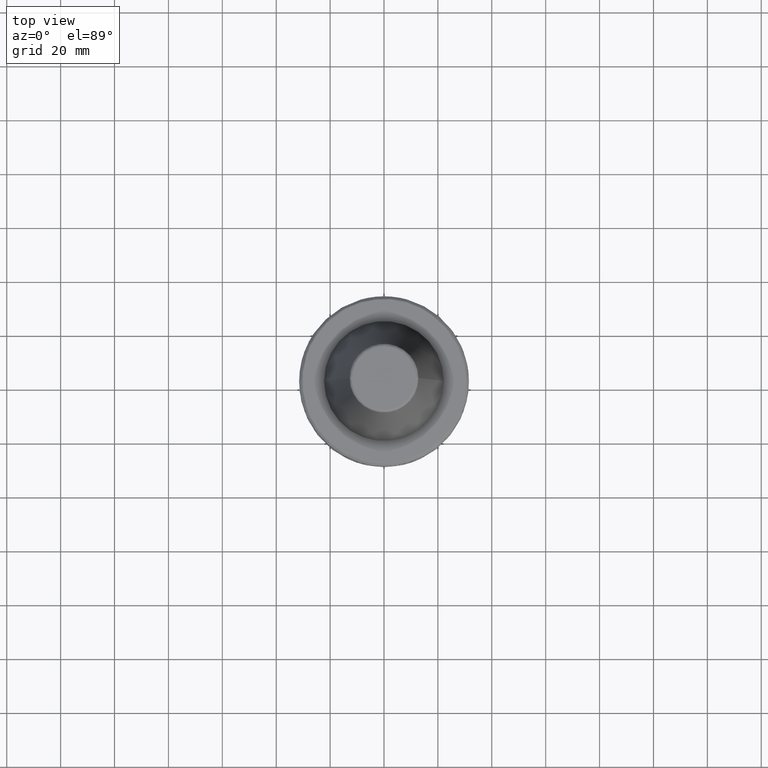
[diagram: clean part render]
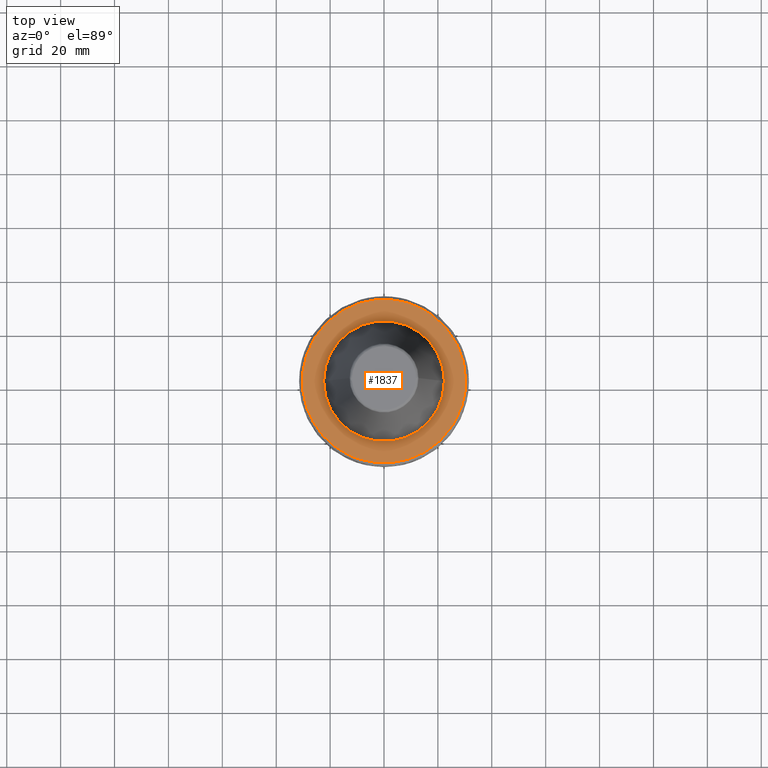
[diagram: same view with one face highlighted and labeled with its STEP entity id]
A machine part, top view. The second image highlights one B-rep face of the part: STEP entity #1837.
In plain terms, the highlighted planar face has unit normal (0, 0, 1).
Its self-contained STEP definition (entity closure, byte-faithful):
#7 = DIRECTION ( 'NONE',  ( 0.0000000000000000000, 0.0000000000000000000, 1.000000000000000000 ) ) ;
#10 = CARTESIAN_POINT ( 'NONE',  ( -30.69832634999999900, -29.39347233099999800, -2.000000000000000000 ) ) ;
#25 = CARTESIAN_POINT ( 'NONE',  ( 29.99094772052989600, 4.551500430335006600, -2.000000000000000400 ) ) ;
#29 = CARTESIAN_POINT ( 'NONE',  ( 28.89858134316554200, 9.221997355102129000, -1.999999999999999600 ) ) ;
#34 = CARTESIAN_POINT ( 'NONE',  ( 28.98842710708996900, 8.936419584275295600, -2.000000000000000000 ) ) ;
#40 = VERTEX_POINT ( 'NONE', #1597 ) ;
#70 = CARTESIAN_POINT ( 'NONE',  ( 29.63292899850427600, 6.572041760292683500, -2.000000000000000000 ) ) ;
#71 = CARTESIAN_POINT ( 'NONE',  ( 29.28491610906471400, 7.927833161445324400, -2.000000000000000000 ) ) ;
#83 = CARTESIAN_POINT ( 'NONE',  ( 29.09063575869059500, 8.601010503144777900, -2.000000000000000400 ) ) ;
#138 = CARTESIAN_POINT ( 'NONE',  ( 0.0000000000000000000, 0.0000000000000000000, -1.999999999889211500 ) ) ;
#200 = CARTESIAN_POINT ( 'NONE',  ( 28.63096951998275900, 10.05576094678015100, -2.000000000000000400 ) ) ;
#205 = CARTESIAN_POINT ( 'NONE',  ( 28.20668680423207100, 11.21377500253931800, -2.000000000000000000 ) ) ;
#217 = CARTESIAN_POINT ( 'NONE',  ( 27.63035417194024700, 12.53142947788729500, -2.000000000000000000 ) ) ;
#309 = CARTESIAN_POINT ( 'NONE',  ( 25.35861405874274900, 16.73046950034468900, -2.000000000000000400 ) ) ;
#323 = CARTESIAN_POINT ( 'NONE',  ( 27.32185382314866500, 13.18191623480184500, -2.000000000000000000 ) ) ;
#324 = CARTESIAN_POINT ( 'NONE',  ( 27.18528209524249200, 13.45890902760249700, -2.000000000000000400 ) ) ;
#352 = CARTESIAN_POINT ( 'NONE',  ( 27.09326598936951700, 13.64317372371914400, -1.999999999999999600 ) ) ;
#396 = CARTESIAN_POINT ( 'NONE',  ( 27.04742688783943200, 13.73383212789346600, -2.000000000000000000 ) ) ;
#441 = CARTESIAN_POINT ( 'NONE',  ( 26.23772648865523000, 15.31501136427651000, -2.000000000000000900 ) ) ;
#453 = CARTESIAN_POINT ( 'NONE',  ( 23.86336185732808700, 18.74596758938351800, -2.000000000000000400 ) ) ;
#467 = CARTESIAN_POINT ( 'NONE',  ( 23.07676778882729400, 19.71966275220767500, -2.000000000000000400 ) ) ;
#484 = AXIS2_PLACEMENT_3D ( 'NONE', #10, #7, #1816 ) ;
#502 = CARTESIAN_POINT ( 'NONE',  ( 22.09088076527113000, 20.79604614920251400, -2.000000000000000000 ) ) ;
#505 = VERTEX_POINT ( 'NONE', #3861 ) ;
#509 = DIRECTION ( 'NONE',  ( 1.000000000000000000, 0.0000000000000000000, 0.0000000000000000000 ) ) ;
#528 = EDGE_CURVE ( 'NONE', #3127, #2687, #882, .T. ) ;
#547 = CARTESIAN_POINT ( 'NONE',  ( 21.20970819160495000, 21.68708970332882700, -1.999999999999999600 ) ) ;
#551 = EDGE_CURVE ( 'NONE', #40, #505, #2294, .T. ) ;
#552 = CARTESIAN_POINT ( 'NONE',  ( 21.35866752159376600, 21.54041520530179800, -1.999999999999999600 ) ) ;
#574 = EDGE_CURVE ( 'NONE', #2687, #1173, #2540, .T. ) ;
#582 = CARTESIAN_POINT ( 'NONE',  ( 21.58088876758343100, 21.31933927445827600, -2.000000000000000400 ) ) ;
#600 = CIRCLE ( 'NONE', #1979, 22.40000002040103800 ) ;
#639 = CARTESIAN_POINT ( 'NONE',  ( -22.40000001036365500, 2.743208831359252800E-015, -1.999999999889212000 ) ) ;
#671 = PLANE ( 'NONE',  #484 ) ;
#687 = CARTESIAN_POINT ( 'NONE',  ( 21.13382203617698700, 21.76103739964288800, -1.999999999999999600 ) ) ;
#690 = CARTESIAN_POINT ( 'NONE',  ( 18.40812359473299500, 24.11670419200402900, -2.000000000000000400 ) ) ;
#695 = CARTESIAN_POINT ( 'NONE',  ( 19.54166597335441900, 23.22700986481958900, -2.000000000000000000 ) ) ;
#707 = CARTESIAN_POINT ( 'NONE',  ( 20.46520372418758200, 22.40600096083292700, -2.000000000000000400 ) ) ;
#727 = CARTESIAN_POINT ( 'NONE',  ( 17.53343108044114000, 24.75415957745899200, -2.000000000000000000 ) ) ;
#765 = CARTESIAN_POINT ( 'NONE',  ( 17.82733198809327400, 24.54451400706289000, -2.000000000000000400 ) ) ;
#862 = EDGE_CURVE ( 'NONE', #1844, #2983, #600, .T. ) ;
#882 = B_SPLINE_CURVE_WITH_KNOTS ( 'NONE', 3,
 ( #2573, #2569, #2577, #2587, #2589, #2594, #2604, #2610, #2617, #2619, #2621, #2624, #2630, #2632, #2636, #2635, #2643, #2651, #2653, #2658, #2669, #2671, #2674, #2675, #2676, #2686, #2700, #2712, #2716, #2729, #2738, #2751, #2761, #2767, #2773, #2776, #2777, #2787, #2792, #2793, #2802, #2806, #2807, #2813, #2818, #2826, #2833, #2835, #2848, #2854, #2858, #2863 ),
 .UNSPECIFIED., .F., .F.,
 ( 4, 1, 1, 1, 1, 2, 2, 1, 1, 1, 1, 2, 2, 1, 1, 1, 2, 2, 2, 1, 1, 1, 2, 2, 1, 1, 1, 1, 2, 2, 1, 1, 1, 1, 2, 2, 4 ),
 ( 0.0000000000000000000, 0.06249999999999890400, 0.09374999999999836200, 0.1093749999999980700, 0.1171874999999979900, 0.1210937499999979500, 0.1249999999999978900, 0.1874999999999955900, 0.2187499999999944500, 0.2343749999999939500, 0.2421874999999937000, 0.2460937499999934500, 0.2499999999999932300, 0.3124999999999925100, 0.3437499999999921700, 0.3593749999999920100, 0.3671874999999919500, 0.3749999999999919000, 0.4999999999999917800, 0.5624999999999916700, 0.5937499999999915600, 0.6093749999999915600, 0.6171874999999914500, 0.6249999999999914500, 0.6874999999999910100, 0.7187499999999907900, 0.7343749999999907900, 0.7421874999999907900, 0.7460937499999907900, 0.7499999999999907900, 0.8124999999999928900, 0.8437499999999938900, 0.8593749999999943400, 0.8671874999999946700, 0.8710937499999947800, 0.8749999999999950000, 1.000000000000000000 ),
 .UNSPECIFIED. ) ;
#918 = CARTESIAN_POINT ( 'NONE',  ( 17.40672245480475400, 24.84309496395732000, -2.000000000000000000 ) ) ;
#926 = CARTESIAN_POINT ( 'NONE',  ( 17.32208312798371700, 24.90218239604509900, -1.999999999999999600 ) ) ;
#1169 = AXIS2_PLACEMENT_3D ( 'NONE', #1903, #1716, #1512 ) ;
#1173 = VERTEX_POINT ( 'NONE', #2905 ) ;
#1236 = CARTESIAN_POINT ( 'NONE',  ( 30.33431456900200700, 0.0000000000000000000, -1.999999999989127100 ) ) ;
#1268 = FACE_BOUND ( 'NONE', #2941, .T. ) ;
#1322 = CARTESIAN_POINT ( 'NONE',  ( 17.27857023573382000, 24.93239110040556400, -2.000000000000000000 ) ) ;
#1325 = CARTESIAN_POINT ( 'NONE',  ( 10.23356629341608200, 28.59799786285369900, -2.000000000000000000 ) ) ;
#1335 = CARTESIAN_POINT ( 'NONE',  ( 13.16285478295100100, 27.32969761418131000, -2.000000000000000900 ) ) ;
#1351 = CARTESIAN_POINT ( 'NONE',  ( 15.55800972109301000, 26.06257617587718700, -2.000000000000000000 ) ) ;
#1365 = CARTESIAN_POINT ( 'NONE',  ( 13.70414636490066100, 27.06361647276048600, -2.000000000000000000 ) ) ;
#1374 = CARTESIAN_POINT ( 'NONE',  ( 14.32913341037129100, 26.74200232872445000, -2.000000000000000000 ) ) ;
#1376 = CARTESIAN_POINT ( 'NONE',  ( 13.38901561963789900, 27.21989881168162400, -2.000000000000000400 ) ) ;
#1378 = CARTESIAN_POINT ( 'NONE',  ( 13.11580958610841000, 27.35230287926909700, -2.000000000000000400 ) ) ;
#1421 = CARTESIAN_POINT ( 'NONE',  ( 13.25339446684082000, 27.28590737126991100, -2.000000000000000000 ) ) ;
#1433 = CARTESIAN_POINT ( 'NONE',  ( 11.67427520330624100, 28.04074170514783000, -2.000000000000000000 ) ) ;
#1465 = CARTESIAN_POINT ( 'NONE',  ( 8.750000000010878400, 29.04493312732836700, -1.999999999989121600 ) ) ;
#1512 = DIRECTION ( 'NONE',  ( 1.000000000000000000, 0.0000000000000000000, 0.0000000000000000000 ) ) ;
#1597 = CARTESIAN_POINT ( 'NONE',  ( -8.750000000010878400, 29.04493312732836700, -1.999999999989121600 ) ) ;
#1612 = CARTESIAN_POINT ( 'NONE',  ( 16.57516464990666400, 25.41815741953639200, -1.999999999999999600 ) ) ;
#1716 = DIRECTION ( 'NONE',  ( -0.0000000000000000000, -0.0000000000000000000, 1.000000000000000000 ) ) ;
#1774 = EDGE_LOOP ( 'NONE', ( #2803, #3079, #3117, #3168, #3188 ) ) ;
#1816 = DIRECTION ( 'NONE',  ( 1.000000000000000000, 0.0000000000000000000, 0.0000000000000000000 ) ) ;
#1837 = ADVANCED_FACE ( 'NONE', ( #3151, #1268 ), #671, .T. ) ;
#1844 = VERTEX_POINT ( 'NONE', #1973 ) ;
#1903 = CARTESIAN_POINT ( 'NONE',  ( 0.0000000000000000000, 0.0000000000000000000, -1.999999999989121600 ) ) ;
#1973 = CARTESIAN_POINT ( 'NONE',  ( 22.40000001036365500, 0.0000000000000000000, -1.999999999889212000 ) ) ;
#1979 = AXIS2_PLACEMENT_3D ( 'NONE', #3459, #3442, #3441 ) ;
#2294 = B_SPLINE_CURVE_WITH_KNOTS ( 'NONE', 3,
 ( #2944, #2937, #2966, #2968, #2973, #2982, #2987, #3004, #3008, #3012, #3019, #3021, #3031, #3051, #3045, #3078, #3080, #3092, #3103, #3110, #3118, #3123, #3128, #3136, #3147, #3153, #3160, #3167, #3171, #3174, #3180, #3197, #3189, #3199, #3204, #3209, #3215, #3216, #3223, #3229, #3232, #3233, #3234, #3238, #3244, #3246, #3250, #3260, #3258, #3261, #3263, #3269, #3271, #3272, #3280, #3283, #3284, #3288, #3296, #3298, #3302, #3311, #3314, #3316, #3315, #3324, #3333, #3338, #3346, #3348, #3354, #3358, #3359, #3367, #3372, #3381, #3382, #3390, #3393, #3845, #2542, #3504, #3413, #3424, #3417, #3428, #3440, #3447, #3452, #3466, #3467, #3472, #3475, #3488, #3490, #3512, #3517, #3519, #3521, #3529, #3536, #3538, #3545, #3552, #3553, #3562, #3564, #3570, #3575, #3584, #3591, #3593, #3595, #3601, #3603, #3605, #3606, #3615, #3616, #3619, #3627, #3633, #3643, #3682, #3687, #3701, #3706, #3712, #3728, #3731, #3739, #3740, #3744, #3746, #3750, #3753, #3762, #3768, #3773, #3780, #3787, #3788, #3790, #3794, #3804, #3809, #3807, #3826, #3820 ),
 .UNSPECIFIED., .F., .F.,
 ( 4, 1, 1, 1, 1, 1, 2, 2, 1, 1, 1, 1, 1, 2, 2, 1, 1, 1, 1, 1, 2, 2, 1, 1, 1, 1, 1, 2, 2, 1, 1, 1, 1, 2, 2, 1, 1, 2, 2, 1, 1, 2, 2, 1, 1, 2, 2, 1, 2, 2, 2, 2, 2, 1, 2, 2, 1, 2, 2, 1, 1, 2, 2, 1, 1, 2, 2, 1, 1, 1, 2, 2, 1, 1, 1, 2, 2, 1, 1, 1, 1, 1, 2, 2, 1, 1, 1, 1, 1, 2, 2, 1, 1, 1, 1, 1, 2, 2, 1, 1, 1, 1, 1, 2, 2, 4 ),
 ( 0.0000000000000000000, 0.03124999999999630900, 0.04687499999999449100, 0.05468749999999358200, 0.05859374999999312400, 0.06054687499999289500, 0.06152343749999278400, 0.06249999999999265900, 0.09374999999999053500, 0.1093749999999894800, 0.1171874999999889400, 0.1210937499999886300, 0.1230468749999885400, 0.1240234374999885400, 0.1249999999999885600, 0.1562499999999875400, 0.1718749999999870100, 0.1796874999999868200, 0.1835937499999866800, 0.1855468749999865900, 0.1865234374999865700, 0.1874999999999865400, 0.2187499999999858200, 0.2343749999999854800, 0.2421874999999852300, 0.2460937499999851200, 0.2480468749999851000, 0.2490234374999851000, 0.2499999999999850700, 0.2812499999999854000, 0.2968749999999856200, 0.3046874999999857300, 0.3085937499999857900, 0.3105468749999857900, 0.3124999999999857900, 0.3281249999999857900, 0.3359374999999857300, 0.3398437499999857300, 0.3437499999999856800, 0.3593749999999855100, 0.3671874999999854600, 0.3710937499999853500, 0.3749999999999852900, 0.3906249999999849600, 0.3984374999999847900, 0.4023437499999847300, 0.4062499999999846200, 0.4218749999999843500, 0.4296874999999842300, 0.4374999999999840700, 0.4531249999999837400, 0.4687499999999833500, 0.4999999999999826800, 0.5156249999999823500, 0.5234374999999822400, 0.5312499999999821300, 0.5468749999999817900, 0.5546874999999816800, 0.5624999999999814600, 0.5781249999999812400, 0.5859374999999811300, 0.5898437499999810200, 0.5937499999999810200, 0.6093749999999809000, 0.6171874999999806800, 0.6210937499999806800, 0.6249999999999806800, 0.6406249999999804600, 0.6484374999999804600, 0.6523437499999803500, 0.6542968749999802400, 0.6562499999999801300, 0.6718749999999794600, 0.6796874999999792400, 0.6835937499999791300, 0.6855468749999791300, 0.6874999999999790200, 0.7187499999999776800, 0.7343749999999771300, 0.7421874999999766900, 0.7460937499999765700, 0.7480468749999764600, 0.7490234374999764600, 0.7499999999999764600, 0.7812499999999787900, 0.7968749999999797900, 0.8046874999999804600, 0.8085937499999807900, 0.8105468749999809000, 0.8115234374999810200, 0.8124999999999810200, 0.8437499999999846800, 0.8593749999999864600, 0.8671874999999873400, 0.8710937499999876800, 0.8730468749999879000, 0.8740234374999880100, 0.8749999999999881200, 0.9062499999999904500, 0.9218749999999915600, 0.9296874999999922300, 0.9335937499999925600, 0.9355468749999927800, 0.9365234374999928900, 0.9374999999999928900, 1.000000000000000000 ),
 .UNSPECIFIED. ) ;
#2457 = AXIS2_PLACEMENT_3D ( 'NONE', #3784, #3890, #3799 ) ;
#2540 = B_SPLINE_CURVE_WITH_KNOTS ( 'NONE', 3,
 ( #3875, #3874, #3883, #3884, #3896, #3898, #3900, #3909, #25, #3911, #70, #71, #83, #34, #3254, #2685, #29, #200, #205, #217, #323, #324, #352, #396, #441, #309, #453, #467, #502, #582, #552, #547, #687, #707, #695, #690, #765, #727, #918, #926, #1322, #1612, #1351, #1374, #1365, #1376, #1421, #1335, #1378, #1433, #1325, #1465 ),
 .UNSPECIFIED., .F., .F.,
 ( 4, 1, 1, 1, 1, 2, 2, 1, 1, 1, 1, 2, 2, 1, 1, 1, 2, 2, 2, 1, 1, 1, 2, 2, 1, 1, 1, 1, 2, 2, 1, 1, 1, 1, 2, 2, 4 ),
 ( 0.0000000000000000000, 0.06249999999999821000, 0.09374999999999729400, 0.1093749999999968400, 0.1171874999999966000, 0.1210937499999965200, 0.1249999999999964200, 0.1874999999999948700, 0.2187499999999941200, 0.2343749999999938100, 0.2421874999999937500, 0.2460937499999937500, 0.2499999999999937300, 0.3124999999999942300, 0.3437499999999944500, 0.3593749999999945600, 0.3671874999999946200, 0.3749999999999946200, 0.4999999999999947800, 0.5624999999999950000, 0.5937499999999951200, 0.6093749999999952300, 0.6171874999999953400, 0.6249999999999954500, 0.6874999999999947800, 0.7187499999999944500, 0.7343749999999943400, 0.7421874999999944500, 0.7460937499999945600, 0.7499999999999945600, 0.8124999999999946700, 0.8437499999999947800, 0.8593749999999950000, 0.8671874999999951200, 0.8710937499999952300, 0.8749999999999953400, 1.000000000000000000 ),
 .UNSPECIFIED. ) ;
#2542 = CARTESIAN_POINT ( 'NONE',  ( -30.07935801154815900, -3.973196832563009800, -2.000000000000000400 ) ) ;
#2569 = CARTESIAN_POINT ( 'NONE',  ( 9.491616504613453700, -28.82151570054404400, -2.000000000000000400 ) ) ;
#2573 = CARTESIAN_POINT ( 'NONE',  ( 8.750000000010878400, -29.04493312732836700, -1.999999999989121600 ) ) ;
#2577 = CARTESIAN_POINT ( 'NONE',  ( 10.58809472701502100, -28.44498156556093700, -2.000000000000000400 ) ) ;
#2587 = CARTESIAN_POINT ( 'NONE',  ( 11.83941287484579000, -27.93322777064513600, -2.000000000000000900 ) ) ;
#2589 = CARTESIAN_POINT ( 'NONE',  ( 12.45809533751841900, -27.65923488049502100, -2.000000000000000400 ) ) ;
#2594 = CARTESIAN_POINT ( 'NONE',  ( 12.76569241604403100, -27.51770943724689300, -2.000000000000000400 ) ) ;
#2604 = CARTESIAN_POINT ( 'NONE',  ( 12.89714598838129000, -27.45608517624634000, -1.999999999999999600 ) ) ;
#2610 = CARTESIAN_POINT ( 'NONE',  ( 12.98469864837705500, -27.41478666899963200, -2.000000000000000900 ) ) ;
#2617 = CARTESIAN_POINT ( 'NONE',  ( 13.02675039796537100, -27.39483329308456300, -2.000000000000000400 ) ) ;
#2619 = CARTESIAN_POINT ( 'NONE',  ( 13.79814797505037800, -27.02646656266523800, -2.000000000000000900 ) ) ;
#2621 = CARTESIAN_POINT ( 'NONE',  ( 14.86329725063449600, -26.46491810423831100, -2.000000000000000400 ) ) ;
#2624 = CARTESIAN_POINT ( 'NONE',  ( 16.06417685907421600, -25.73715094427415900, -2.000000000000000000 ) ) ;
#2630 = CARTESIAN_POINT ( 'NONE',  ( 16.65416802669198800, -25.35511054134225300, -2.000000000000000000 ) ) ;
#2632 = CARTESIAN_POINT ( 'NONE',  ( 16.94655145135034500, -25.15955113413882000, -2.000000000000000000 ) ) ;
#2635 = CARTESIAN_POINT ( 'NONE',  ( 17.15433945216445400, -25.01802854571883800, -2.000000000000000000 ) ) ;
#2636 = CARTESIAN_POINT ( 'NONE',  ( 17.07129888495739000, -25.07476727267933100, -2.000000000000000400 ) ) ;
#2643 = CARTESIAN_POINT ( 'NONE',  ( 17.19472438798234400, -24.99029216120723300, -2.000000000000000400 ) ) ;
#2651 = CARTESIAN_POINT ( 'NONE',  ( 17.91669821405805500, -24.49174044689493700, -2.000000000000000000 ) ) ;
#2653 = CARTESIAN_POINT ( 'NONE',  ( 18.90411900667743700, -23.74878839320646800, -2.000000000000000400 ) ) ;
#2658 = CARTESIAN_POINT ( 'NONE',  ( 20.00039627759097300, -22.81356090334749000, -2.000000000000000000 ) ) ;
#2669 = CARTESIAN_POINT ( 'NONE',  ( 20.53460649959547600, -22.32883463494571400, -2.000000000000000900 ) ) ;
#2671 = CARTESIAN_POINT ( 'NONE',  ( 20.76056907757191200, -22.11742783631518000, -2.000000000000000000 ) ) ;
#2674 = CARTESIAN_POINT ( 'NONE',  ( 20.91054753843942700, -21.97567508849138200, -2.000000000000000000 ) ) ;
#2675 = CARTESIAN_POINT ( 'NONE',  ( 20.98426913039160300, -21.90529410334559300, -1.999999999999999600 ) ) ;
#2676 = CARTESIAN_POINT ( 'NONE',  ( 22.26372282847489000, -20.67119464503168700, -2.000000000000000400 ) ) ;
#2685 = CARTESIAN_POINT ( 'NONE',  ( 28.91336940120782000, 9.175520046386925100, -1.999999999999999100 ) ) ;
#2686 = CARTESIAN_POINT ( 'NONE',  ( 23.36555037923360300, -19.41688641025338700, -2.000000000000000000 ) ) ;
#2687 = VERTEX_POINT ( 'NONE', #1236 ) ;
#2700 = CARTESIAN_POINT ( 'NONE',  ( 24.85989369709860200, -17.40275913444099500, -2.000000000000000400 ) ) ;
#2712 = CARTESIAN_POINT ( 'NONE',  ( 25.56323180091421000, -16.36831578775927600, -2.000000000000000000 ) ) ;
#2716 = CARTESIAN_POINT ( 'NONE',  ( 26.30708420057783700, -15.11355072627343400, -2.000000000000000000 ) ) ;
#2729 = CARTESIAN_POINT ( 'NONE',  ( 26.65983322004600000, -14.47418957294122200, -2.000000000000000000 ) ) ;
#2738 = CARTESIAN_POINT ( 'NONE',  ( 26.80690197545443700, -14.19761080238686000, -2.000000000000000400 ) ) ;
#2751 = CARTESIAN_POINT ( 'NONE',  ( 26.90403461332845600, -14.01265454475112000, -2.000000000000000000 ) ) ;
#2761 = CARTESIAN_POINT ( 'NONE',  ( 26.95283833222391600, -13.91853609182576600, -2.000000000000000000 ) ) ;
#2765 = AXIS2_PLACEMENT_3D ( 'NONE', #138, #3877, #509 ) ;
#2767 = CARTESIAN_POINT ( 'NONE',  ( 27.37547041565432000, -13.09329530633923100, -2.000000000000000000 ) ) ;
#2773 = CARTESIAN_POINT ( 'NONE',  ( 27.89260539026890800, -11.97365973281248200, -2.000000000000000000 ) ) ;
#2776 = CARTESIAN_POINT ( 'NONE',  ( 28.41477420489049500, -10.63361780949472100, -1.999999999999999600 ) ) ;
#2777 = CARTESIAN_POINT ( 'NONE',  ( 28.65556978159408500, -9.955146742618378400, -2.000000000000000000 ) ) ;
#2787 = CARTESIAN_POINT ( 'NONE',  ( 28.77089536229408400, -9.613798682875829700, -1.999999999999999600 ) ) ;
#2792 = CARTESIAN_POINT ( 'NONE',  ( 28.81923370952584000, -9.467053973063803700, -2.000000000000000000 ) ) ;
#2793 = CARTESIAN_POINT ( 'NONE',  ( 28.85121774064930400, -9.369123570031767700, -2.000000000000000000 ) ) ;
#2802 = CARTESIAN_POINT ( 'NONE',  ( 28.86751918071708200, -9.318767940977522800, -2.000000000000000000 ) ) ;
#2803 = ORIENTED_EDGE ( 'NONE', *, *, #551, .T. ) ;
#2806 = CARTESIAN_POINT ( 'NONE',  ( 29.12796411937252100, -8.507431572842651900, -2.000000000000000000 ) ) ;
#2807 = CARTESIAN_POINT ( 'NONE',  ( 29.44937089772534800, -7.350973885567253100, -2.000000000000000000 ) ) ;
#2813 = CARTESIAN_POINT ( 'NONE',  ( 29.74335513320376700, -5.982450383660991000, -1.999999999999999600 ) ) ;
#2818 = CARTESIAN_POINT ( 'NONE',  ( 29.87009966612636400, -5.293357916019942000, -2.000000000000000400 ) ) ;
#2826 = CARTESIAN_POINT ( 'NONE',  ( 29.92841003638347900, -4.947604003027440600, -2.000000000000000400 ) ) ;
#2833 = CARTESIAN_POINT ( 'NONE',  ( 29.95231550302136400, -4.799164966208091500, -2.000000000000000000 ) ) ;
#2835 = CARTESIAN_POINT ( 'NONE',  ( 29.96801143810355200, -4.700148099796521700, -2.000000000000000400 ) ) ;
#2848 = CARTESIAN_POINT ( 'NONE',  ( 29.97603395988365100, -4.648688230146606600, -1.999999999999999600 ) ) ;
#2854 = CARTESIAN_POINT ( 'NONE',  ( 30.21732498637145900, -3.076460664678158700, -1.999999999999999600 ) ) ;
#2858 = CARTESIAN_POINT ( 'NONE',  ( 30.33431457497160000, -1.542779007815861000, -2.000000000000000400 ) ) ;
#2863 = CARTESIAN_POINT ( 'NONE',  ( 30.33431456900200700, 0.0000000000000000000, -1.999999999989127100 ) ) ;
#2905 = CARTESIAN_POINT ( 'NONE',  ( 8.750000000010878400, 29.04493312732836700, -1.999999999989121600 ) ) ;
#2937 = CARTESIAN_POINT ( 'NONE',  ( -9.356263315191235100, 28.86229184570564900, -2.000000000000000000 ) ) ;
#2941 = EDGE_LOOP ( 'NONE', ( #3224, #3478 ) ) ;
#2944 = CARTESIAN_POINT ( 'NONE',  ( -8.750000000010878400, 29.04493312732836700, -1.999999999989121600 ) ) ;
#2966 = CARTESIAN_POINT ( 'NONE',  ( -10.25539830336300000, 28.56047632669930900, -2.000000000000000400 ) ) ;
#2968 = CARTESIAN_POINT ( 'NONE',  ( -11.28643410343893500, 28.15961445780850200, -2.000000000000000400 ) ) ;
#2973 = CARTESIAN_POINT ( 'NONE',  ( -11.79746324861245000, 27.94699758251726300, -2.000000000000000400 ) ) ;
#2982 = CARTESIAN_POINT ( 'NONE',  ( -12.05185563248309500, 27.83764265966016900, -2.000000000000000000 ) ) ;
#2983 = VERTEX_POINT ( 'NONE', #639 ) ;
#2987 = CARTESIAN_POINT ( 'NONE',  ( -12.17877127723939700, 27.78220357692877600, -2.000000000000000900 ) ) ;
#3004 = CARTESIAN_POINT ( 'NONE',  ( -12.23310357916801500, 27.75828076547898200, -1.999999999999999600 ) ) ;
#3008 = CARTESIAN_POINT ( 'NONE',  ( -12.26931175439761800, 27.74229595683137400, -2.000000000000000000 ) ) ;
#3012 = CARTESIAN_POINT ( 'NONE',  ( -12.28581283852638100, 27.73499386776726500, -2.000000000000000000 ) ) ;
#3019 = CARTESIAN_POINT ( 'NONE',  ( -12.93548555507501500, 27.44666887129768200, -2.000000000000000400 ) ) ;
#3021 = CARTESIAN_POINT ( 'NONE',  ( -13.86415961935535200, 26.99612151116273800, -2.000000000000000000 ) ) ;
#3031 = CARTESIAN_POINT ( 'NONE',  ( -14.91907993744312600, 26.41594321693412400, -1.999999999999999600 ) ) ;
#3045 = CARTESIAN_POINT ( 'NONE',  ( -15.69778709486261900, 25.95694837427321400, -2.000000000000000000 ) ) ;
#3051 = CARTESIAN_POINT ( 'NONE',  ( -15.43940690726052300, 26.11221914296869400, -2.000000000000000000 ) ) ;
#3061 = CIRCLE ( 'NONE', #2765, 22.40000002040103800 ) ;
#3078 = CARTESIAN_POINT ( 'NONE',  ( -15.82653136433699500, 25.87846080699726400, -2.000000000000000400 ) ) ;
#3079 = ORIENTED_EDGE ( 'NONE', *, *, #3625, .T. ) ;
#3080 = CARTESIAN_POINT ( 'NONE',  ( -15.88161194604173500, 25.84464066753725600, -2.000000000000000000 ) ) ;
#3085 = CIRCLE ( 'NONE', #2457, 30.33431456900200700 ) ;
#3092 = CARTESIAN_POINT ( 'NONE',  ( -15.91831110411505700, 25.82205332775781100, -2.000000000000000000 ) ) ;
#3103 = CARTESIAN_POINT ( 'NONE',  ( -15.93515230959061500, 25.81166558167947400, -2.000000000000000400 ) ) ;
#3107 = CIRCLE ( 'NONE', #1169, 30.33431456900200700 ) ;
#3110 = CARTESIAN_POINT ( 'NONE',  ( -16.58941387368955100, 25.40707027264038900, -2.000000000000000400 ) ) ;
#3117 = ORIENTED_EDGE ( 'NONE', *, *, #528, .T. ) ;
#3118 = CARTESIAN_POINT ( 'NONE',  ( -17.51699707711204800, 24.78515420528919600, -1.999999999999999600 ) ) ;
#3123 = CARTESIAN_POINT ( 'NONE',  ( -18.55705501484249700, 24.00111131064468100, -2.000000000000000400 ) ) ;
#3127 = VERTEX_POINT ( 'NONE', #3409 ) ;
#3128 = CARTESIAN_POINT ( 'NONE',  ( -19.06655336714210200, 23.59447132597204800, -1.999999999999999600 ) ) ;
#3136 = CARTESIAN_POINT ( 'NONE',  ( -19.31866988915049900, 23.38749669929814300, -2.000000000000000000 ) ) ;
#3147 = CARTESIAN_POINT ( 'NONE',  ( -19.44406998661935000, 23.28309572737680400, -2.000000000000000000 ) ) ;
#3151 = FACE_OUTER_BOUND ( 'NONE', #1774, .T. ) ;
#3153 = CARTESIAN_POINT ( 'NONE',  ( -19.49767185049128000, 23.23815666971384200, -1.999999999999999600 ) ) ;
#3160 = CARTESIAN_POINT ( 'NONE',  ( -19.53337508528516500, 23.20815379038690600, -1.999999999999999100 ) ) ;
#3167 = CARTESIAN_POINT ( 'NONE',  ( -19.54990844443944900, 23.19423031968027600, -1.999999999999999600 ) ) ;
#3168 = ORIENTED_EDGE ( 'NONE', *, *, #574, .T. ) ;
#3171 = CARTESIAN_POINT ( 'NONE',  ( -20.18096295507029600, 22.66145621140403000, -2.000000000000000000 ) ) ;
#3174 = CARTESIAN_POINT ( 'NONE',  ( -21.06558052801685200, 21.85269675747641900, -2.000000000000000000 ) ) ;
#3180 = CARTESIAN_POINT ( 'NONE',  ( -22.03939454326272300, 20.84996729246651600, -2.000000000000000000 ) ) ;
#3188 = ORIENTED_EDGE ( 'NONE', *, *, #3672, .T. ) ;
#3189 = CARTESIAN_POINT ( 'NONE',  ( -22.74427513350907000, 20.07203035737612900, -2.000000000000000000 ) ) ;
#3197 = CARTESIAN_POINT ( 'NONE',  ( -22.51174159592105500, 20.33380836777129400, -2.000000000000000000 ) ) ;
#3199 = CARTESIAN_POINT ( 'NONE',  ( -22.85963190511778700, 19.94021671516665300, -2.000000000000000000 ) ) ;
#3204 = CARTESIAN_POINT ( 'NONE',  ( -22.90887552212467400, 19.88352701771719200, -1.999999999999999600 ) ) ;
#3209 = CARTESIAN_POINT ( 'NONE',  ( -22.94166126692996600, 19.84568985575031200, -1.999999999999999600 ) ) ;
#3215 = CARTESIAN_POINT ( 'NONE',  ( -22.95701710977427000, 19.82792690337887700, -2.000000000000000000 ) ) ;
#3216 = CARTESIAN_POINT ( 'NONE',  ( -23.53005888112157600, 19.16329848520100800, -2.000000000000000000 ) ) ;
#3223 = CARTESIAN_POINT ( 'NONE',  ( -24.32030747742505000, 18.16502189206043000, -2.000000000000000400 ) ) ;
#3224 = ORIENTED_EDGE ( 'NONE', *, *, #862, .T. ) ;
#3229 = CARTESIAN_POINT ( 'NONE',  ( -25.16654743503216800, 16.94516325682293400, -2.000000000000000000 ) ) ;
#3232 = CARTESIAN_POINT ( 'NONE',  ( -25.57073822931568000, 16.32143328672748000, -2.000000000000000000 ) ) ;
#3233 = CARTESIAN_POINT ( 'NONE',  ( -25.76810133032741500, 16.00611813856058100, -2.000000000000000400 ) ) ;
#3234 = CARTESIAN_POINT ( 'NONE',  ( -25.85167145301886600, 15.87024375439208700, -1.999999999999999100 ) ) ;
#3238 = CARTESIAN_POINT ( 'NONE',  ( -25.90715952071174800, 15.77949653813122500, -2.000000000000000000 ) ) ;
#3244 = CARTESIAN_POINT ( 'NONE',  ( -25.93380419485333000, 15.73567355049108600, -2.000000000000000000 ) ) ;
#3246 = CARTESIAN_POINT ( 'NONE',  ( -26.19035254644559900, 15.31113753089935200, -2.000000000000000000 ) ) ;
#3250 = CARTESIAN_POINT ( 'NONE',  ( -26.51982622991077700, 14.73806452999459400, -2.000000000000000400 ) ) ;
#3254 = CARTESIAN_POINT ( 'NONE',  ( 28.94353729717251500, 9.079913564105682500, -2.000000000000000400 ) ) ;
#3258 = CARTESIAN_POINT ( 'NONE',  ( -27.03275052787816100, 13.76274605932045100, -1.999999999999999600 ) ) ;
#3260 = CARTESIAN_POINT ( 'NONE',  ( -26.88217831963563100, 14.05718565640308900, -2.000000000000000400 ) ) ;
#3261 = CARTESIAN_POINT ( 'NONE',  ( -27.13208276792948600, 13.56586758003349200, -2.000000000000000900 ) ) ;
#3263 = CARTESIAN_POINT ( 'NONE',  ( -27.18025756466078100, 13.46910465774443800, -2.000000000000000400 ) ) ;
#3269 = CARTESIAN_POINT ( 'NONE',  ( -27.42817554043308800, 12.96413626351587700, -2.000000000000000000 ) ) ;
#3271 = CARTESIAN_POINT ( 'NONE',  ( -27.71196662871978600, 12.35204075590222500, -2.000000000000000000 ) ) ;
#3272 = CARTESIAN_POINT ( 'NONE',  ( -28.01906288710077000, 11.62719581990905100, -2.000000000000000400 ) ) ;
#3280 = CARTESIAN_POINT ( 'NONE',  ( -28.14553413827400500, 11.31424795224541700, -1.999999999999999600 ) ) ;
#3283 = CARTESIAN_POINT ( 'NONE',  ( -28.22870576550284100, 11.10510492092472400, -2.000000000000001300 ) ) ;
#3284 = CARTESIAN_POINT ( 'NONE',  ( -28.26907202198373900, 11.00196227167904300, -2.000000000000000400 ) ) ;
#3288 = CARTESIAN_POINT ( 'NONE',  ( -28.47452982407325800, 10.46812696471688000, -2.000000000000000000 ) ) ;
#3296 = CARTESIAN_POINT ( 'NONE',  ( -28.70639203148637700, 9.822481284329160900, -2.000000000000000000 ) ) ;
#3298 = CARTESIAN_POINT ( 'NONE',  ( -28.95119541872002600, 9.060402194485513800, -2.000000000000000400 ) ) ;
#3302 = CARTESIAN_POINT ( 'NONE',  ( -29.05060347294549300, 8.731905628254393600, -2.000000000000000400 ) ) ;
#3311 = CARTESIAN_POINT ( 'NONE',  ( -29.11565157950460400, 8.512487641430878300, -2.000000000000000000 ) ) ;
#3314 = CARTESIAN_POINT ( 'NONE',  ( -29.14718843085566400, 8.403888779283018800, -1.999999999999999600 ) ) ;
#3315 = CARTESIAN_POINT ( 'NONE',  ( -29.48014449815510200, 7.174164015081901300, -2.000000000000000000 ) ) ;
#3316 = CARTESIAN_POINT ( 'NONE',  ( -29.30556523496210600, 7.846641085884025200, -2.000000000000000000 ) ) ;
#3324 = CARTESIAN_POINT ( 'NONE',  ( -29.63151440874596800, 6.496017186194847200, -2.000000000000000400 ) ) ;
#3333 = CARTESIAN_POINT ( 'NONE',  ( -29.72727004856162100, 6.042659354029025200, -2.000000000000000400 ) ) ;
#3338 = CARTESIAN_POINT ( 'NONE',  ( -29.77223559838577000, 5.817129645436257800, -2.000000000000000000 ) ) ;
#3346 = CARTESIAN_POINT ( 'NONE',  ( -29.90139651575819400, 5.127975516632166600, -2.000000000000000400 ) ) ;
#3348 = CARTESIAN_POINT ( 'NONE',  ( -29.97681941064787700, 4.666952077928250700, -2.000000000000000000 ) ) ;
#3354 = CARTESIAN_POINT ( 'NONE',  ( -30.10629643371007800, 3.741730494851347000, -2.000000000000000000 ) ) ;
#3358 = CARTESIAN_POINT ( 'NONE',  ( -30.16019740235522000, 3.279177264159904000, -2.000000000000000400 ) ) ;
#3359 = CARTESIAN_POINT ( 'NONE',  ( -30.29076611537907800, 1.876886031492797500, -2.000000000000000400 ) ) ;
#3367 = CARTESIAN_POINT ( 'NONE',  ( -30.33429755141198900, 0.9389045381770035900, -1.999999999999999600 ) ) ;
#3372 = CARTESIAN_POINT ( 'NONE',  ( -30.33432308671818900, -0.4694522690884966900, -2.000000000000000000 ) ) ;
#3381 = CARTESIAN_POINT ( 'NONE',  ( -30.31800518701311400, -1.173009827563726800, -2.000000000000000400 ) ) ;
#3382 = CARTESIAN_POINT ( 'NONE',  ( -30.27719128627079900, -1.875636118302685500, -2.000000000000000000 ) ) ;
#3390 = CARTESIAN_POINT ( 'NONE',  ( -30.24453846332319200, -2.343846697076152000, -2.000000000000000000 ) ) ;
#3393 = CARTESIAN_POINT ( 'NONE',  ( -30.22537985283936700, -2.579034885945620900, -2.000000000000000400 ) ) ;
#3409 = CARTESIAN_POINT ( 'NONE',  ( 8.750000000010878400, -29.04493312732836700, -1.999999999989121600 ) ) ;
#3413 = CARTESIAN_POINT ( 'NONE',  ( -29.89876974088069500, -5.127262311186114200, -1.999999999999999600 ) ) ;
#3417 = CARTESIAN_POINT ( 'NONE',  ( -29.72993185422710400, -6.042936981947995900, -2.000000000000000400 ) ) ;
#3424 = CARTESIAN_POINT ( 'NONE',  ( -29.85796792915132200, -5.359648912778335500, -2.000000000000000000 ) ) ;
#3428 = CARTESIAN_POINT ( 'NONE',  ( -29.58636063603586300, -6.722709471295530600, -2.000000000000000000 ) ) ;
#3440 = CARTESIAN_POINT ( 'NONE',  ( -29.39167438076216100, -7.509625110845600900, -2.000000000000000000 ) ) ;
#3441 = DIRECTION ( 'NONE',  ( 1.000000000000000000, 0.0000000000000000000, 0.0000000000000000000 ) ) ;
#3442 = DIRECTION ( 'NONE',  ( 0.0000000000000000000, -0.0000000000000000000, -1.000000000000000000 ) ) ;
#3447 = CARTESIAN_POINT ( 'NONE',  ( -29.30241173549116200, -7.845556328219477600, -1.999999999999999600 ) ) ;
#3452 = CARTESIAN_POINT ( 'NONE',  ( -29.24160871003825000, -8.069217508150217100, -1.999999999999999600 ) ) ;
#3459 = CARTESIAN_POINT ( 'NONE',  ( 0.0000000000000000000, 0.0000000000000000000, -1.999999999889211500 ) ) ;
#3466 = CARTESIAN_POINT ( 'NONE',  ( -29.21013559761977900, -8.182394721451308000, -2.000000000000000000 ) ) ;
#3467 = CARTESIAN_POINT ( 'NONE',  ( -29.05377656790564700, -8.732617317210765500, -1.999999999999999600 ) ) ;
#3472 = CARTESIAN_POINT ( 'NONE',  ( -28.85137362391776600, -9.388095370876868600, -2.000000000000000400 ) ) ;
#3475 = CARTESIAN_POINT ( 'NONE',  ( -28.58938566635275400, -10.14443890964146900, -2.000000000000000400 ) ) ;
#3478 = ORIENTED_EDGE ( 'NONE', *, *, #3655, .T. ) ;
#3488 = CARTESIAN_POINT ( 'NONE',  ( -28.47156557248650800, -10.46679024257361200, -2.000000000000000000 ) ) ;
#3490 = CARTESIAN_POINT ( 'NONE',  ( -28.39178783421475700, -10.68129204275793100, -1.999999999999999600 ) ) ;
#3504 = CARTESIAN_POINT ( 'NONE',  ( -29.97421796203450500, -4.666058091203670900, -2.000000000000000400 ) ) ;
#3512 = CARTESIAN_POINT ( 'NONE',  ( -28.35057164199198400, -10.79019309049602300, -2.000000000000000400 ) ) ;
#3517 = CARTESIAN_POINT ( 'NONE',  ( -28.14853134404032200, -11.31520368944890000, -2.000000000000000400 ) ) ;
#3519 = CARTESIAN_POINT ( 'NONE',  ( -27.89226686244602500, -11.93932451989714000, -2.000000000000000000 ) ) ;
#3521 = CARTESIAN_POINT ( 'NONE',  ( -27.56911341682781100, -12.65715468423680300, -2.000000000000000000 ) ) ;
#3529 = CARTESIAN_POINT ( 'NONE',  ( -27.40149213974582300, -13.01349206527748100, -2.000000000000000000 ) ) ;
#3536 = CARTESIAN_POINT ( 'NONE',  ( -27.32835918793792700, -13.16565572119580800, -2.000000000000000000 ) ) ;
#3538 = CARTESIAN_POINT ( 'NONE',  ( -27.27931605081491600, -13.26697541080187300, -2.000000000000000000 ) ) ;
#3545 = CARTESIAN_POINT ( 'NONE',  ( -27.25412894741161200, -13.31863642251178000, -2.000000000000000400 ) ) ;
#3552 = CARTESIAN_POINT ( 'NONE',  ( -27.03553885904426200, -13.76390742999424800, -2.000000000000000400 ) ) ;
#3553 = CARTESIAN_POINT ( 'NONE',  ( -26.73137068439567400, -14.35080375615949300, -1.999999999999999600 ) ) ;
#3562 = CARTESIAN_POINT ( 'NONE',  ( -26.35425704786114000, -15.02361902334904000, -2.000000000000000000 ) ) ;
#3564 = CARTESIAN_POINT ( 'NONE',  ( -26.16013753806607800, -15.35705237860968700, -2.000000000000000000 ) ) ;
#3570 = CARTESIAN_POINT ( 'NONE',  ( -26.07575145711223300, -15.49931504264977800, -2.000000000000000000 ) ) ;
#3575 = CARTESIAN_POINT ( 'NONE',  ( -26.01922917973691400, -15.59401518637488600, -2.000000000000000400 ) ) ;
#3584 = CARTESIAN_POINT ( 'NONE',  ( -25.98981554074963500, -15.64298255709373500, -2.000000000000000000 ) ) ;
#3591 = CARTESIAN_POINT ( 'NONE',  ( -25.52221399129783900, -16.41682807450861900, -2.000000000000000000 ) ) ;
#3593 = CARTESIAN_POINT ( 'NONE',  ( -24.81865136491733300, -17.47798243998381600, -2.000000000000000400 ) ) ;
#3595 = CARTESIAN_POINT ( 'NONE',  ( -23.92184459152179000, -18.66116237469278600, -2.000000000000000000 ) ) ;
#3601 = CARTESIAN_POINT ( 'NONE',  ( -23.45444527750279200, -19.23904396912757900, -2.000000000000000000 ) ) ;
#3603 = CARTESIAN_POINT ( 'NONE',  ( -23.21599663866299000, -19.52455767311505100, -2.000000000000000400 ) ) ;
#3605 = CARTESIAN_POINT ( 'NONE',  ( -23.09558507378549700, -19.66645775180130700, -2.000000000000000000 ) ) ;
#3606 = CARTESIAN_POINT ( 'NONE',  ( -23.04372570766852800, -19.72708847695809100, -2.000000000000000000 ) ) ;
#3615 = CARTESIAN_POINT ( 'NONE',  ( -23.00909626142591300, -19.76746816166703600, -2.000000000000000400 ) ) ;
#3616 = CARTESIAN_POINT ( 'NONE',  ( -22.99072366905591400, -19.78883184659359500, -2.000000000000000000 ) ) ;
#3619 = CARTESIAN_POINT ( 'NONE',  ( -22.45144898410858800, -20.41434030233000400, -2.000000000000000000 ) ) ;
#3625 = EDGE_CURVE ( 'NONE', #505, #3127, #3085, .T. ) ;
#3627 = CARTESIAN_POINT ( 'NONE',  ( -21.63358037529551900, -21.29054291804682500, -2.000000000000000000 ) ) ;
#3633 = CARTESIAN_POINT ( 'NONE',  ( -20.62082946430511000, -22.25393053867969700, -2.000000000000000000 ) ) ;
#3643 = CARTESIAN_POINT ( 'NONE',  ( -20.09981129196614400, -22.72091215790360500, -2.000000000000000000 ) ) ;
#3655 = EDGE_CURVE ( 'NONE', #2983, #1844, #3061, .T. ) ;
#3672 = EDGE_CURVE ( 'NONE', #1173, #40, #3107, .T. ) ;
#3682 = CARTESIAN_POINT ( 'NONE',  ( -19.83564152658571100, -22.95072491974243400, -2.000000000000000000 ) ) ;
#3687 = CARTESIAN_POINT ( 'NONE',  ( -19.70264147409275400, -23.06471178871857600, -2.000000000000000400 ) ) ;
#3701 = CARTESIAN_POINT ( 'NONE',  ( -19.64544534378089900, -23.11336626572049000, -2.000000000000000400 ) ) ;
#3706 = CARTESIAN_POINT ( 'NONE',  ( -19.60727101072523800, -23.14575879743876300, -2.000000000000000400 ) ) ;
#3712 = CARTESIAN_POINT ( 'NONE',  ( -19.58684254800472100, -23.16304725638714500, -2.000000000000000000 ) ) ;
#3728 = CARTESIAN_POINT ( 'NONE',  ( -18.99907164098185300, -23.65931423678414100, -2.000000000000000000 ) ) ;
#3731 = CARTESIAN_POINT ( 'NONE',  ( -18.11984527906921400, -24.34790061057744700, -1.999999999999999600 ) ) ;
#3739 = CARTESIAN_POINT ( 'NONE',  ( -17.05157918379134000, -25.09305249313073800, -2.000000000000000000 ) ) ;
#3740 = CARTESIAN_POINT ( 'NONE',  ( -16.50682063455747100, -25.45107871268932300, -2.000000000000000000 ) ) ;
#3744 = CARTESIAN_POINT ( 'NONE',  ( -16.23178498454178600, -25.62645439203909300, -2.000000000000000400 ) ) ;
#3746 = CARTESIAN_POINT ( 'NONE',  ( -16.09360306568426700, -25.71323287410660900, -2.000000000000001300 ) ) ;
#3750 = CARTESIAN_POINT ( 'NONE',  ( -16.03423993749181500, -25.75022878979109800, -2.000000000000000000 ) ) ;
#3753 = CARTESIAN_POINT ( 'NONE',  ( -15.99463289518019600, -25.77484943083755200, -2.000000000000000000 ) ) ;
#3762 = CARTESIAN_POINT ( 'NONE',  ( -15.97329696644516200, -25.78807603657634900, -2.000000000000000000 ) ) ;
#3768 = CARTESIAN_POINT ( 'NONE',  ( -15.36878485434415400, -26.16193571594012800, -2.000000000000000000 ) ) ;
#3773 = CARTESIAN_POINT ( 'NONE',  ( -14.47295486602572400, -26.67469011817994900, -2.000000000000000000 ) ) ;
#3780 = CARTESIAN_POINT ( 'NONE',  ( -13.39887550362683300, -27.21858097118072100, -2.000000000000000000 ) ) ;
#3784 = CARTESIAN_POINT ( 'NONE',  ( 0.0000000000000000000, 0.0000000000000000000, -1.999999999989121600 ) ) ;
#3787 = CARTESIAN_POINT ( 'NONE',  ( -12.85459972842053300, -27.47694574361133100, -2.000000000000000000 ) ) ;
#3788 = CARTESIAN_POINT ( 'NONE',  ( -12.58065281731567900, -27.60273296630920800, -2.000000000000000000 ) ) ;
#3790 = CARTESIAN_POINT ( 'NONE',  ( -12.44322710588781800, -27.66477778677878500, -2.000000000000000900 ) ) ;
#3794 = CARTESIAN_POINT ( 'NONE',  ( -12.38423346044543100, -27.69118654036302700, -2.000000000000000000 ) ) ;
#3799 = DIRECTION ( 'NONE',  ( 1.000000000000000000, 0.0000000000000000000, 0.0000000000000000000 ) ) ;
#3804 = CARTESIAN_POINT ( 'NONE',  ( -12.34488282748977100, -27.70875195747255400, -2.000000000000000400 ) ) ;
#3807 = CARTESIAN_POINT ( 'NONE',  ( -11.14803108244894900, -28.23998999074214600, -2.000000000000000400 ) ) ;
#3809 = CARTESIAN_POINT ( 'NONE',  ( -12.32358534066948000, -27.71822966472337400, -2.000000000000000000 ) ) ;
#3820 = CARTESIAN_POINT ( 'NONE',  ( -8.750000000010878400, -29.04493312732836700, -1.999999999989121600 ) ) ;
#3826 = CARTESIAN_POINT ( 'NONE',  ( -9.962864446378260300, -28.67954878818556000, -2.000000000000000000 ) ) ;
#3845 = CARTESIAN_POINT ( 'NONE',  ( -30.16040121441078300, -3.277170787921316600, -2.000000000000000400 ) ) ;
#3861 = CARTESIAN_POINT ( 'NONE',  ( -8.750000000010878400, -29.04493312732836700, -1.999999999989121600 ) ) ;
#3874 = CARTESIAN_POINT ( 'NONE',  ( 30.33431457495837700, 0.7712161271116002600, -1.999999999999999600 ) ) ;
#3875 = CARTESIAN_POINT ( 'NONE',  ( 30.33431456900200700, 0.0000000000000000000, -1.999999999989127100 ) ) ;
#3877 = DIRECTION ( 'NONE',  ( 0.0000000000000000000, -0.0000000000000000000, -1.000000000000000000 ) ) ;
#3883 = CARTESIAN_POINT ( 'NONE',  ( 30.29044347923333900, 1.924758843768420700, -1.999999999999999600 ) ) ;
#3884 = CARTESIAN_POINT ( 'NONE',  ( 30.16248611670198400, 3.264816100349518600, -2.000000000000000000 ) ) ;
#3890 = DIRECTION ( 'NONE',  ( -0.0000000000000000000, -0.0000000000000000000, 1.000000000000000000 ) ) ;
#3896 = CARTESIAN_POINT ( 'NONE',  ( 30.07931383105660600, 3.933409083760448100, -1.999999999999999600 ) ) ;
#3898 = CARTESIAN_POINT ( 'NONE',  ( 30.03292928713896600, 4.267346664246000300, -1.999999999999999600 ) ) ;
#3900 = CARTESIAN_POINT ( 'NONE',  ( 30.01202196808252500, 4.410385860621254900, -1.999999999999999600 ) ) ;
#3909 = CARTESIAN_POINT ( 'NONE',  ( 29.99785526008797400, 4.505728233860954100, -1.999999999999999600 ) ) ;
#3911 = CARTESIAN_POINT ( 'NONE',  ( 29.86171522720908900, 5.393757614584028900, -2.000000000000000900 ) ) ;